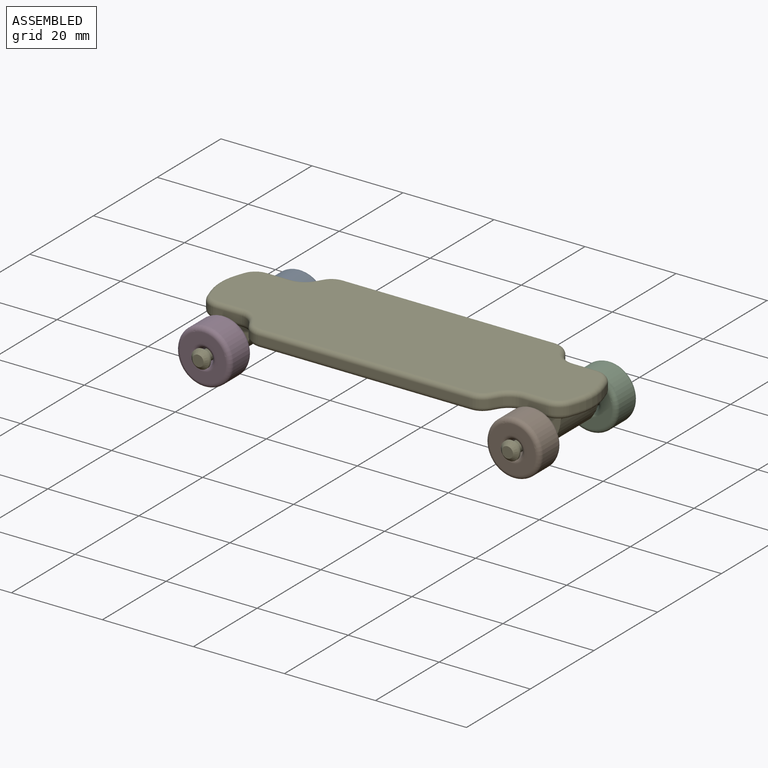
[diagram: assembled view]
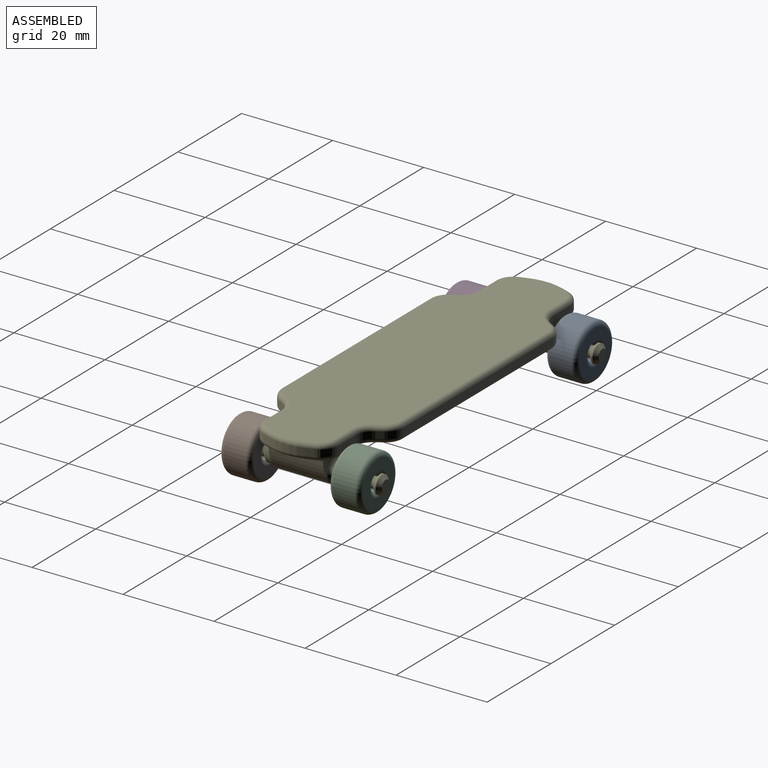
[diagram: assembled view, second angle]
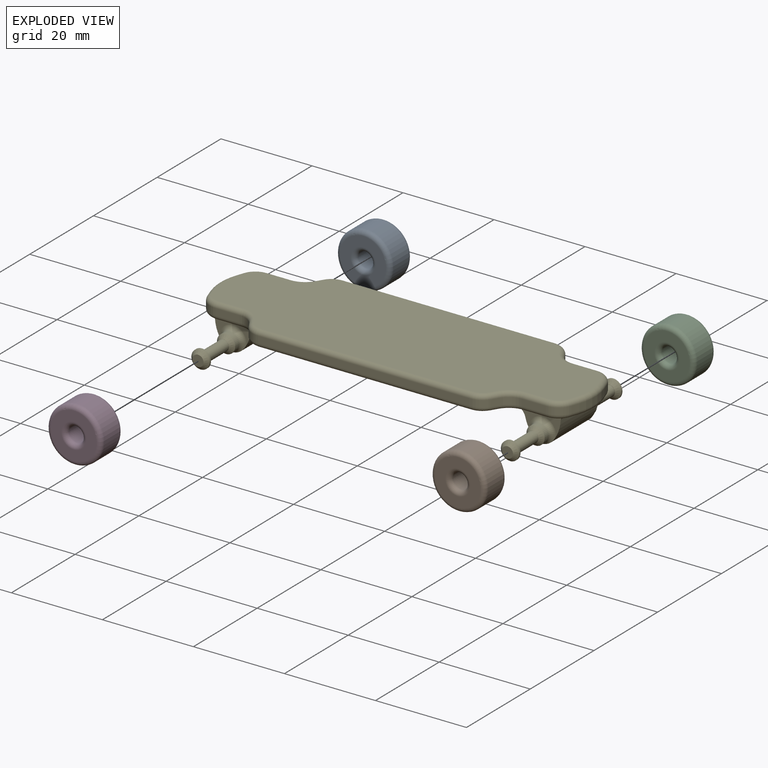
[diagram: exploded view]
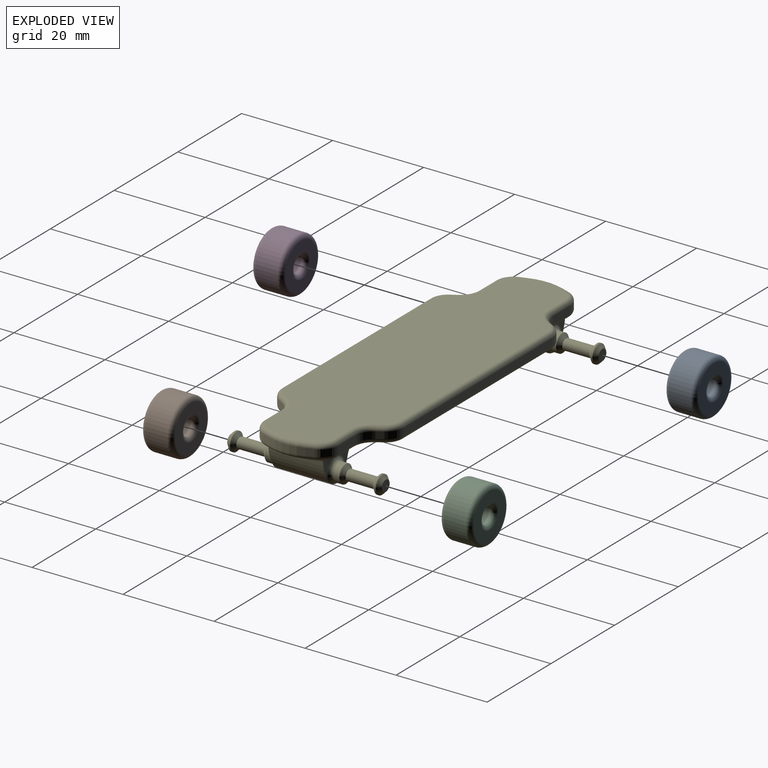
[diagram: exploded view, second angle]
ASSEMBLY  parts=5 mates=8
PART A: 8 faces, bbox 13x6.8x13 mm
  f0: cylinder r=1.75mm len=4.8mm, axis (0,1,0), area 52.8mm2, adj f6,f7
  f1: cylinder r=6mm len=12mm, axis (0,1,0), area 181mm2, adj f4,f5
  f2: plane 10x10mm, normal (0,-1,0), area 54.8mm2, adj f5,f7
  f3: plane 10x10mm, normal (0,1,0), area 54.8mm2, adj f4,f6
  f4: torus R=5mm, axis (0,-1,0), area 55.6mm2, adj f1,f3
  f5: torus R=5mm, axis (0,-1,0), area 55.6mm2, adj f1,f2
  f6: torus R=2.75mm, axis (0,-1,0), area 20.9mm2, adj f0,f3
  f7: torus R=2.75mm, axis (0,-1,0), area 20.9mm2, adj f0,f2
PART B: same geometry as A
PART C: same geometry as A
PART D: same geometry as A
PART E: 146 faces, bbox 84.6x34x11.5 mm
  f0: plane 11.82x1.51mm, normal (0,0,-1), area 11.7mm2, adj f83,f85,f87,f89,f91,f137
  f1: plane 77.45x25mm, normal (0,0,-1), area 1406.6mm2, adj f9,f26,f44,f60,f74,f75,f76,f77
  f2: cylinder r=2mm len=4mm, axis (0,-1,0), area 15.1mm2, adj f15,f143
  f3: plane 46.53x1.5mm, normal (0,1,0), area 69.8mm2, adj f18,f35,f74,f102
  f4: plane 1.5x1.43mm, normal (0.85,0.52,0), area 2.5mm2, adj f18,f19,f78,f106
  f5: plane 5.33x1.5mm, normal (0,1,0), area 8mm2, adj f19,f20,f82,f110
  f6: plane 1.62x1.5mm, normal (0.94,0.33,0), area 2.6mm2, adj f20,f73,f86,f114
  f7: plane 80.6x25mm, normal (0,0,1), area 1705mm2, adj f102,f103,f104,f105,f106,f107,f108,f109
  f8: plane 11.82x1.51mm, normal (0,0,-1), area 11.7mm2, adj f84,f86,f88,f90,f92,f140
  f9: plane 11.46x4.24mm, normal (0,1,0), area 17.2mm2, adj f1,f84,f130,f131,f134,f141,f143
  f10: plane 2.4x2.4mm, normal (0,1,0), area 0.1mm2, adj f11,f15
  f11: cylinder r=1.19mm len=6mm, axis (0,1,0), area 44.8mm2, adj f10,f14
  f12: cylinder r=2.02mm len=4.03mm, axis (0,-1,0), area 5.1mm2, adj f16,f17
  f13: plane 2.43x2.43mm, normal (0,1,0), area 4.7mm2, adj f17
  f14: plane 2.43x2.43mm, normal (0,-1,0), area 0.2mm2, adj f11,f16
  f15: cone r=1.2mm half-angle=45deg, axis (0,-1,0), area 11.4mm2, adj f2,f10
  f16: cone r=2.02mm half-angle=45deg, axis (0,1,0), area 11.5mm2, adj f12,f14
  f17: cone r=1.22mm half-angle=45deg, axis (0,-1,0), area 11.5mm2, adj f12,f13
  f18: cylinder r=4mm len=3.41mm, axis (0,0,-1), area 6.1mm2, adj f3,f4,f76,f104
  f19: cylinder r=4mm len=3.41mm, axis (0,0,1), area 6.1mm2, adj f4,f5,f80,f108
  f20: cylinder r=4mm len=3.78mm, axis (0,0,-1), area 7.4mm2, adj f5,f6,f84,f112
  f21: cylinder r=3mm len=12.32mm, axis (0,-1,0), area 57.7mm2, adj f130,f131,f143,f145
  f22: cylinder r=2mm len=4mm, axis (0,-1,0), area 15.1mm2, adj f32,f142
  f23: plane 1.5x1.43mm, normal (-0.85,0.52,0), area 2.5mm2, adj f35,f36,f77,f105
  f24: plane 5.33x1.5mm, normal (0,1,0), area 8mm2, adj f36,f37,f81,f109
  f25: plane 1.62x1.5mm, normal (-0.94,0.33,0), area 2.6mm2, adj f37,f72,f85,f113
  f26: plane 11.46x4.24mm, normal (0,1,0), area 17.2mm2, adj f1,f83,f132,f133,f135,f138,f142
  f27: plane 2.4x2.4mm, normal (0,1,0), area 0.1mm2, adj f28,f32
  f28: cylinder r=1.19mm len=6mm, axis (0,1,0), area 44.8mm2, adj f27,f31
  f29: cylinder r=2.02mm len=4.03mm, axis (0,-1,0), area 5.1mm2, adj f33,f34
  f30: plane 2.43x2.43mm, normal (0,1,0), area 4.7mm2, adj f34
  f31: plane 2.43x2.43mm, normal (0,-1,0), area 0.2mm2, adj f28,f33
  f32: cone r=1.2mm half-angle=45deg, axis (0,-1,0), area 11.4mm2, adj f22,f27
  f33: cone r=2.02mm half-angle=45deg, axis (0,1,0), area 11.5mm2, adj f29,f31
  f34: cone r=1.22mm half-angle=45deg, axis (0,-1,0), area 11.5mm2, adj f29,f30
  f35: cylinder r=4mm len=3.41mm, axis (0,0,-1), area 6.1mm2, adj f3,f23,f75,f103
  f36: cylinder r=4mm len=3.41mm, axis (0,0,1), area 6.1mm2, adj f23,f24,f79,f107
  f37: cylinder r=4mm len=3.78mm, axis (0,0,-1), area 7.4mm2, adj f24,f25,f83,f111
  f38: cylinder r=3mm len=12.32mm, axis (0,-1,0), area 57.7mm2, adj f132,f133,f142,f144
  f39: cylinder r=2mm len=4mm, axis (0,1,0), area 15.1mm2, adj f50,f145
  f40: plane 46.53x1.5mm, normal (0,-1,0), area 69.8mm2, adj f53,f69,f101,f129
  f41: plane 1.5x1.43mm, normal (0.85,-0.52,0), area 2.5mm2, adj f53,f54,f98,f126
  f42: plane 5.33x1.5mm, normal (0,-1,0), area 8mm2, adj f54,f55,f94,f122
  f43: plane 1.62x1.5mm, normal (0.94,-0.33,0), area 2.6mm2, adj f55,f73,f90,f118
  f44: plane 11.46x4.24mm, normal (0,-1,0), area 17.2mm2, adj f1,f92,f130,f131,f134,f139,f145
  f45: plane 2.4x2.4mm, normal (0,-1,0), area 0.1mm2, adj f46,f50
  f46: cylinder r=1.19mm len=6mm, axis (0,-1,0), area 44.8mm2, adj f45,f49
  f47: cylinder r=2.02mm len=4.03mm, axis (0,1,0), area 5.1mm2, adj f51,f52
  f48: plane 2.43x2.43mm, normal (0,-1,0), area 4.7mm2, adj f52
  f49: plane 2.43x2.43mm, normal (0,1,0), area 0.2mm2, adj f46,f51
  f50: cone r=1.2mm half-angle=45deg, axis (0,1,0), area 11.4mm2, adj f39,f45
  f51: cone r=2.02mm half-angle=45deg, axis (0,-1,0), area 11.5mm2, adj f47,f49
  f52: cone r=1.22mm half-angle=45deg, axis (0,1,0), area 11.5mm2, adj f47,f48
  f53: cylinder r=4mm len=3.41mm, axis (0,0,-1), area 6.1mm2, adj f40,f41,f100,f128
  f54: cylinder r=4mm len=3.41mm, axis (0,0,1), area 6.1mm2, adj f41,f42,f96,f124
  f55: cylinder r=4mm len=3.78mm, axis (0,0,-1), area 7.4mm2, adj f42,f43,f92,f120
  f56: cylinder r=2mm len=4mm, axis (0,1,0), area 15.1mm2, adj f66,f144
  f57: plane 1.5x1.43mm, normal (-0.85,-0.52,0), area 2.5mm2, adj f69,f70,f97,f125
  f58: plane 5.33x1.5mm, normal (0,-1,0), area 8mm2, adj f70,f71,f93,f121
  f59: plane 1.62x1.5mm, normal (-0.94,-0.33,0), area 2.6mm2, adj f71,f72,f89,f117
  f60: plane 11.46x4.24mm, normal (0,-1,0), area 17.2mm2, adj f1,f91,f132,f133,f135,f136,f144
  f61: plane 2.4x2.4mm, normal (0,-1,0), area 0.1mm2, adj f62,f66
  f62: cylinder r=1.19mm len=6mm, axis (0,-1,0), area 44.8mm2, adj f61,f65
  f63: cylinder r=2.02mm len=4.03mm, axis (0,1,0), area 5.1mm2, adj f67,f68
  f64: plane 2.43x2.43mm, normal (0,-1,0), area 4.7mm2, adj f68
  f65: plane 2.43x2.43mm, normal (0,1,0), area 0.2mm2, adj f62,f67
  f66: cone r=1.2mm half-angle=45deg, axis (0,1,0), area 11.4mm2, adj f56,f61
  f67: cone r=2.02mm half-angle=45deg, axis (0,-1,0), area 11.5mm2, adj f63,f65
  f68: cone r=1.22mm half-angle=45deg, axis (0,1,0), area 11.5mm2, adj f63,f64
  f69: cylinder r=4mm len=3.41mm, axis (0,0,-1), area 6.1mm2, adj f40,f57,f99,f127
  f70: cylinder r=4mm len=3.41mm, axis (0,0,1), area 6.1mm2, adj f57,f58,f95,f123
  f71: cylinder r=4mm len=3.78mm, axis (0,0,-1), area 7.4mm2, adj f58,f59,f91,f119
  f72: cylinder r=12mm len=7.87mm, axis (0,0,-1), area 12mm2, adj f25,f59,f87,f115
  f73: cylinder r=12mm len=7.87mm, axis (0,0,-1), area 12mm2, adj f6,f43,f88,f116
  f74: cylinder r=1mm len=46.53mm, axis (1,0,0), area 73.1mm2, adj f1,f3,f75,f76
  f75: torus R=3mm, axis (0,0,1), area 5.8mm2, adj f1,f35,f74,f77
  f76: torus R=3mm, axis (0,0,1), area 5.8mm2, adj f1,f18,f74,f78
  f77: cylinder r=1mm len=1.95mm, axis (-0.52,-0.85,0), area 2.6mm2, adj f1,f23,f75,f79
  f78: cylinder r=1mm len=1.95mm, axis (0.52,-0.85,0), area 2.6mm2, adj f1,f4,f76,f80
  f79: torus R=5mm, axis (0,0,1), area 7mm2, adj f1,f36,f77,f81
  f80: torus R=5mm, axis (0,0,1), area 7mm2, adj f1,f19,f78,f82
  f81: cylinder r=1mm len=5.33mm, axis (-1,0,0), area 8.4mm2, adj f1,f24,f79,f83
  f82: cylinder r=1mm len=5.33mm, axis (1,0,0), area 8.4mm2, adj f1,f5,f80,f84
  f83: torus R=3mm, axis (0,0,1), area 7.1mm2, adj f0,f1,f26,f37,f81,f85,f138
  f84: torus R=3mm, axis (0,0,1), area 7.1mm2, adj f1,f8,f9,f20,f82,f86,f141
  f85: cylinder r=1mm len=1.95mm, axis (-0.33,-0.94,0), area 2.7mm2, adj f0,f25,f83,f87
  f86: cylinder r=1mm len=1.95mm, axis (0.33,-0.94,0), area 2.7mm2, adj f6,f8,f84,f88
  f87: torus R=11mm, axis (0,0,1), area 12.2mm2, adj f0,f72,f85,f89
  f88: torus R=11mm, axis (0,0,1), area 12.2mm2, adj f8,f73,f86,f90
  f89: cylinder r=1mm len=1.95mm, axis (-0.33,0.94,0), area 2.7mm2, adj f0,f59,f87,f91
  f90: cylinder r=1mm len=1.95mm, axis (0.33,0.94,0), area 2.7mm2, adj f8,f43,f88,f92
  f91: torus R=3mm, axis (0,0,1), area 7.1mm2, adj f0,f1,f60,f71,f89,f93,f136
  f92: torus R=3mm, axis (0,0,1), area 7.1mm2, adj f1,f8,f44,f55,f90,f94,f139
  f93: cylinder r=1mm len=5.33mm, axis (-1,0,0), area 8.4mm2, adj f1,f58,f91,f95
  f94: cylinder r=1mm len=5.33mm, axis (1,0,0), area 8.4mm2, adj f1,f42,f92,f96
  f95: torus R=5mm, axis (0,0,1), area 7mm2, adj f1,f70,f93,f97
  f96: torus R=5mm, axis (0,0,1), area 7mm2, adj f1,f54,f94,f98
  f97: cylinder r=1mm len=1.95mm, axis (-0.52,0.85,0), area 2.6mm2, adj f1,f57,f95,f99
  f98: cylinder r=1mm len=1.95mm, axis (0.52,0.85,0), area 2.6mm2, adj f1,f41,f96,f100
  f99: torus R=3mm, axis (0,0,1), area 5.8mm2, adj f1,f69,f97,f101
  f100: torus R=3mm, axis (0,0,1), area 5.8mm2, adj f1,f53,f98,f101
  f101: cylinder r=1mm len=46.53mm, axis (1,0,0), area 73.1mm2, adj f1,f40,f99,f100
  f102: cylinder r=1mm len=46.53mm, axis (-1,0,0), area 73.1mm2, adj f3,f7,f103,f104
  f103: torus R=3mm, axis (0,0,1), area 5.8mm2, adj f7,f35,f102,f105
  f104: torus R=3mm, axis (0,0,1), area 5.8mm2, adj f7,f18,f102,f106
  f105: cylinder r=1mm len=1.95mm, axis (0.52,0.85,0), area 2.6mm2, adj f7,f23,f103,f107
  f106: cylinder r=1mm len=1.95mm, axis (-0.52,0.85,0), area 2.6mm2, adj f4,f7,f104,f108
  f107: torus R=5mm, axis (0,0,1), area 7mm2, adj f7,f36,f105,f109
  f108: torus R=5mm, axis (0,0,1), area 7mm2, adj f7,f19,f106,f110
  f109: cylinder r=1mm len=5.33mm, axis (1,0,0), area 8.4mm2, adj f7,f24,f107,f111
  f110: cylinder r=1mm len=5.33mm, axis (-1,0,0), area 8.4mm2, adj f5,f7,f108,f112
  f111: torus R=3mm, axis (0,0,1), area 7.1mm2, adj f7,f37,f109,f113
  f112: torus R=3mm, axis (0,0,1), area 7.1mm2, adj f7,f20,f110,f114
  f113: cylinder r=1mm len=1.95mm, axis (0.33,0.94,0), area 2.7mm2, adj f7,f25,f111,f115
  f114: cylinder r=1mm len=1.95mm, axis (-0.33,0.94,0), area 2.7mm2, adj f6,f7,f112,f116
  f115: torus R=11mm, axis (0,0,1), area 12.2mm2, adj f7,f72,f113,f117
  f116: torus R=11mm, axis (0,0,1), area 12.2mm2, adj f7,f73,f114,f118
  f117: cylinder r=1mm len=1.95mm, axis (0.33,-0.94,0), area 2.7mm2, adj f7,f59,f115,f119
  f118: cylinder r=1mm len=1.95mm, axis (-0.33,-0.94,0), area 2.7mm2, adj f7,f43,f116,f120
  f119: torus R=3mm, axis (0,0,1), area 7.1mm2, adj f7,f71,f117,f121
  f120: torus R=3mm, axis (0,0,1), area 7.1mm2, adj f7,f55,f118,f122
  f121: cylinder r=1mm len=5.33mm, axis (1,0,0), area 8.4mm2, adj f7,f58,f119,f123
  f122: cylinder r=1mm len=5.33mm, axis (-1,0,0), area 8.4mm2, adj f7,f42,f120,f124
  f123: torus R=5mm, axis (0,0,1), area 7mm2, adj f7,f70,f121,f125
  f124: torus R=5mm, axis (0,0,1), area 7mm2, adj f7,f54,f122,f126
  f125: cylinder r=1mm len=1.95mm, axis (0.52,-0.85,0), area 2.6mm2, adj f7,f57,f123,f127
  f126: cylinder r=1mm len=1.95mm, axis (-0.52,-0.85,0), area 2.6mm2, adj f7,f41,f124,f128
  f127: torus R=3mm, axis (0,0,1), area 5.8mm2, adj f7,f69,f125,f129
  f128: torus R=3mm, axis (0,0,1), area 5.8mm2, adj f7,f53,f126,f129
  f129: cylinder r=1mm len=46.53mm, axis (-1,0,0), area 73.1mm2, adj f7,f40,f127,f128
  f130: cylinder r=8mm len=12.18mm, axis (0,1,0), area 62.1mm2, adj f9,f21,f44,f139,f140,f141,f143,f145
  f131: cylinder r=8mm len=12.18mm, axis (0,-1,0), area 43.7mm2, adj f9,f21,f44,f134,f143,f145
  f132: cylinder r=8mm len=12.18mm, axis (0,1,0), area 62.1mm2, adj f26,f38,f60,f136,f137,f138,f142,f144
  f133: cylinder r=8mm len=12.18mm, axis (0,-1,0), area 43.7mm2, adj f26,f38,f60,f135,f142,f144
  f134: cylinder r=3mm len=12mm, axis (0,-1,0), area 47.7mm2, adj f1,f9,f44,f131
  f135: cylinder r=3mm len=12mm, axis (0,-1,0), area 47.7mm2, adj f1,f26,f60,f133
  f136: bspline ~1.22x0.9mm, area 0.1mm2, adj f60,f91,f132,f137
  f137: cylinder r=0.8mm len=11.82mm, axis (0,1,0), area 14.4mm2, adj f0,f132,f136,f138
  f138: bspline ~1.22x0.9mm, area 0.1mm2, adj f26,f83,f132,f137
  f139: bspline ~1.22x0.9mm, area 0.1mm2, adj f44,f92,f130,f140
  f140: cylinder r=0.8mm len=11.82mm, axis (0,1,0), area 14.4mm2, adj f8,f130,f139,f141
  f141: bspline ~1.22x0.9mm, area 0.1mm2, adj f9,f84,f130,f140
  f142: torus R=3mm, axis (0,-1,0), area 19.7mm2, adj f22,f26,f38,f132,f133
  f143: torus R=3mm, axis (0,-1,0), area 19.7mm2, adj f2,f9,f21,f130,f131
  f144: torus R=3mm, axis (0,1,0), area 19.5mm2, adj f38,f56,f60,f132,f133
  f145: torus R=3mm, axis (0,1,0), area 19.5mm2, adj f21,f39,f44,f130,f131
PLACE A t=(-40.09,-20.33,-6.99)mm
PLACE B t=(27.91,-44.33,-6.99)mm
PLACE C t=(27.91,-20.33,-6.99)mm
PLACE D t=(-40.09,-44.33,-6.99)mm
PLACE E t=(-6.09,-35.73,-10.99)mm
MATE planar C.f0 <-> E.f2  axis (0,1,0) through (27.91,-20.33,-6.99)mm
MATE cylindrical D.f0 <-> E.f22  axis (0,1,0) through (-40.09,-50.13,-6.99)mm
MATE planar B.f0 <-> E.f2  axis (0,-1,0) through (27.91,-51.13,-6.99)mm
MATE cylindrical A.f0 <-> E.f22  axis (0,1,0) through (-40.09,-21.33,-6.99)mm
MATE cylindrical B.f0 <-> E.f2  axis (0,1,0) through (27.91,-50.13,-6.99)mm
MATE planar A.f0 <-> E.f22  axis (0,1,0) through (-40.09,-20.33,-6.99)mm
MATE planar D.f0 <-> E.f22  axis (0,-1,0) through (-40.09,-51.13,-6.99)mm
MATE cylindrical C.f0 <-> E.f2  axis (0,1,0) through (27.91,-21.33,-6.99)mm
